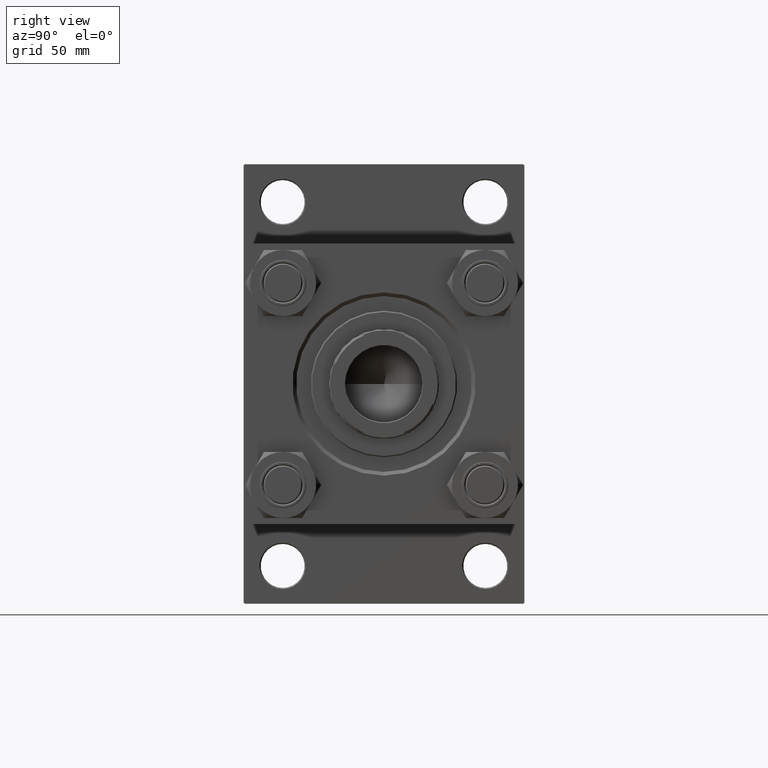
[diagram: clean part render]
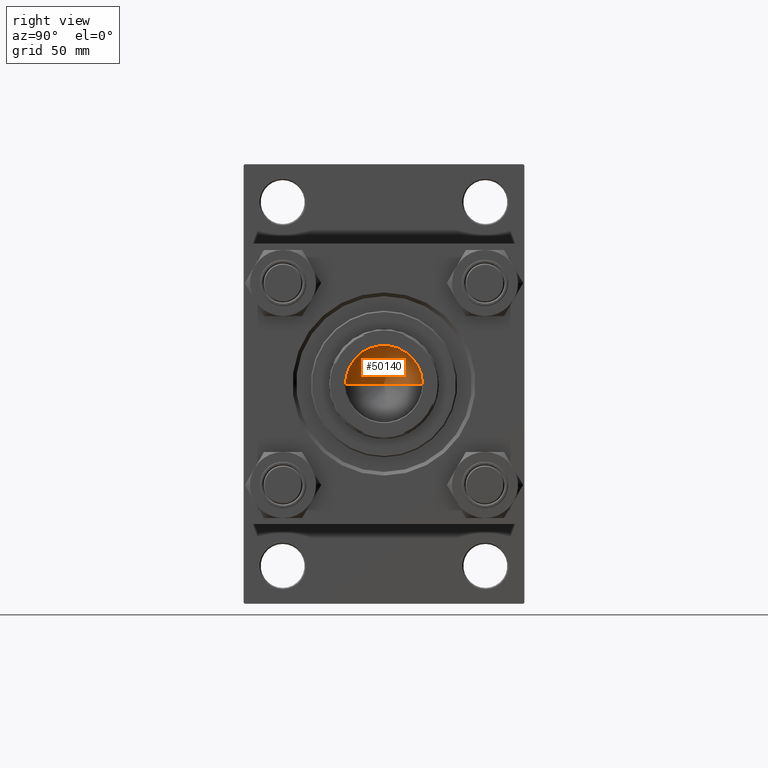
[diagram: same view with one face highlighted and labeled with its STEP entity id]
A machine part, right view. The second image highlights one B-rep face of the part: STEP entity #50140.
In plain terms, the highlighted conical surface has half-angle 59 deg.
Its self-contained STEP definition (entity closure, byte-faithful):
#376 = ORIENTED_EDGE ( 'NONE', *, *, #33985, .F. ) ;
#2561 = EDGE_CURVE ( 'NONE', #5021, #22309, #50166, .T. ) ;
#2759 = CARTESIAN_POINT ( 'NONE',  ( 15.74999999999998934, 0.000000000000000000, 111.0000000000000000 ) ) ;
#2960 = AXIS2_PLACEMENT_3D ( 'NONE', #36157, #32334, #13950 ) ;
#4422 = DIRECTION ( 'NONE',  ( -0.000000000000000000, -0.000000000000000000, 1.000000000000000000 ) ) ;
#5021 = VERTEX_POINT ( 'NONE', #39166 ) ;
#6064 = DIRECTION ( 'NONE',  ( 0.8571673007021115565, 0.000000000000000000, 0.5150380749100554878 ) ) ;
#7679 = VERTEX_POINT ( 'NONE', #37019 ) ;
#10306 = ORIENTED_EDGE ( 'NONE', *, *, #2561, .T. ) ;
#11462 = VECTOR ( 'NONE', #49343, 1000.000000000000000 ) ;
#11758 = EDGE_LOOP ( 'NONE', ( #376, #25049, #10306 ) ) ;
#12317 = DIRECTION ( 'NONE',  ( 1.000000000000000000, 0.000000000000000000, 0.000000000000000000 ) ) ;
#13950 = DIRECTION ( 'NONE',  ( 1.000000000000000000, 0.000000000000000000, 0.000000000000000000 ) ) ;
#18557 = EDGE_CURVE ( 'NONE', #7679, #5021, #41702, .T. ) ;
#22309 = VERTEX_POINT ( 'NONE', #22582 ) ;
#22582 = CARTESIAN_POINT ( 'NONE',  ( 15.74999999999998934, 0.000000000000000000, 111.0000000000000000 ) ) ;
#24948 = CONICAL_SURFACE ( 'NONE', #2960, 15.74999999999998934, 1.029744258676652979 ) ;
#25049 = ORIENTED_EDGE ( 'NONE', *, *, #18557, .T. ) ;
#28225 = AXIS2_PLACEMENT_3D ( 'NONE', #39360, #4422, #12317 ) ;
#28611 = VECTOR ( 'NONE', #6064, 1000.000000000000000 ) ;
#32334 = DIRECTION ( 'NONE',  ( -0.000000000000000000, -0.000000000000000000, 1.000000000000000000 ) ) ;
#33802 = CARTESIAN_POINT ( 'NONE',  ( -15.74999999999998934, 1.928818708657080161E-15, 111.0000000000000000 ) ) ;
#33985 = EDGE_CURVE ( 'NONE', #7679, #22309, #37697, .T. ) ;
#36157 = CARTESIAN_POINT ( 'NONE',  ( 0.000000000000000000, 0.000000000000000000, 111.0000000000000000 ) ) ;
#36892 = FACE_OUTER_BOUND ( 'NONE', #11758, .T. ) ;
#37019 = CARTESIAN_POINT ( 'NONE',  ( -1.584115414415908206E-14, 0.000000000000000000, 101.5364452503159072 ) ) ;
#37697 = LINE ( 'NONE', #2759, #28611 ) ;
#39166 = CARTESIAN_POINT ( 'NONE',  ( -15.74999999999998934, 1.928818708657080161E-15, 111.0000000000000000 ) ) ;
#39360 = CARTESIAN_POINT ( 'NONE',  ( 0.000000000000000000, 0.000000000000000000, 111.0000000000000000 ) ) ;
#41702 = LINE ( 'NONE', #33802, #11462 ) ;
#49343 = DIRECTION ( 'NONE',  ( -0.8571673007021115565, 1.049727191138617710E-16, 0.5150380749100554878 ) ) ;
#50140 = ADVANCED_FACE ( 'NONE', ( #36892 ), #24948, .F. ) ;
#50166 = CIRCLE ( 'NONE', #28225, 15.74999999999998934 ) ;